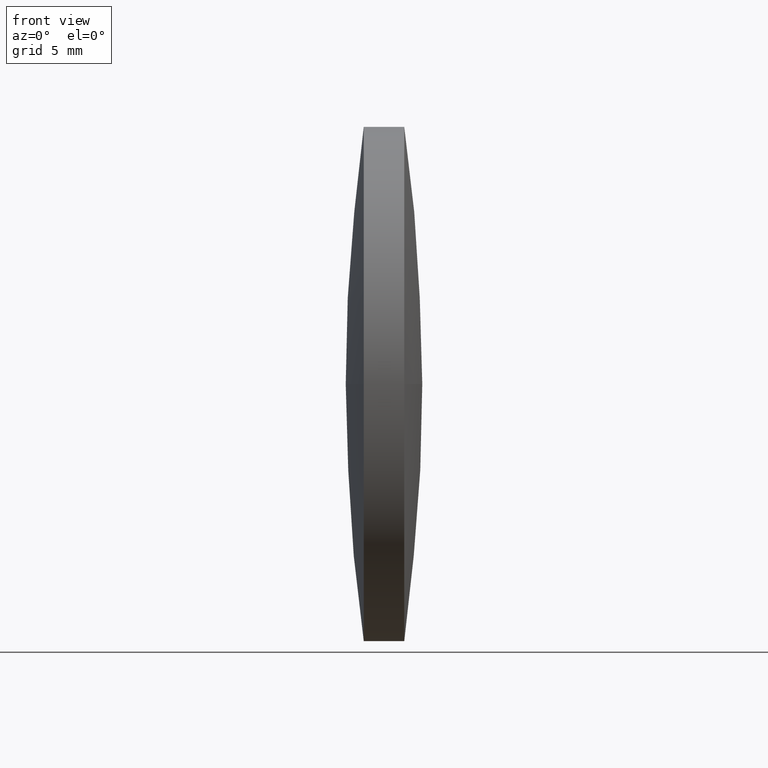
[diagram: clean part render]
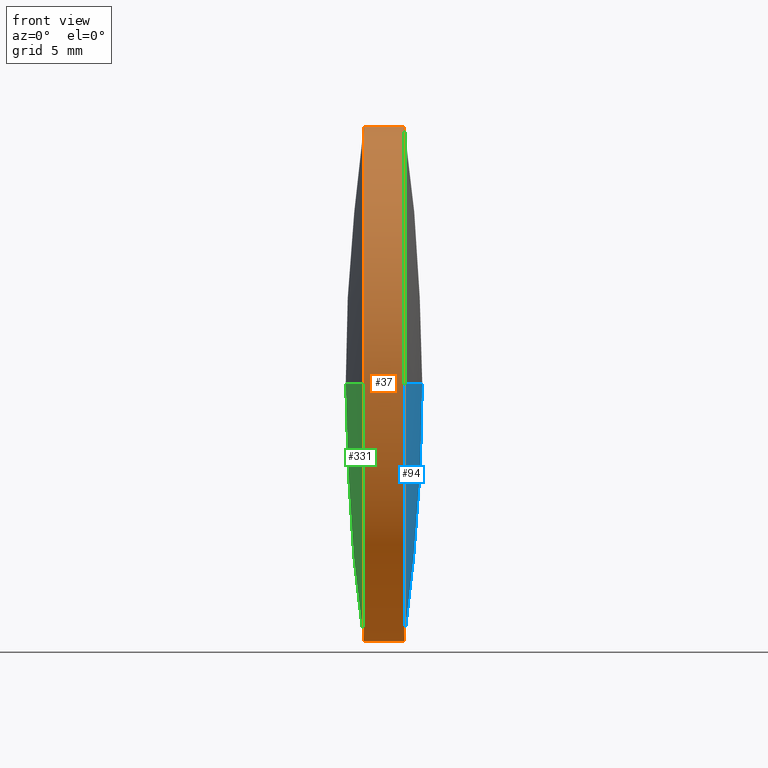
[diagram: same view with three faces highlighted in distinct colors, each labeled with its STEP entity id]
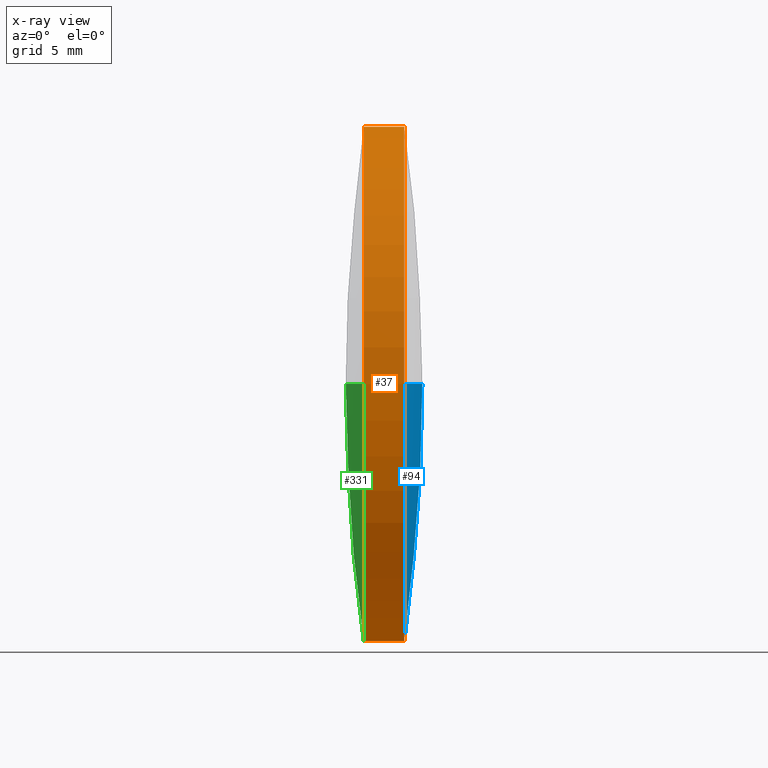
[diagram: x-ray of the same camera — body ghosted, the three highlighted faces saturated]
A machine part, front view with three faces highlighted in distinct colors.
The next image is the same camera in x-ray (body ghosted, the three faces saturated) — at least one of them is partly hidden behind the body in this view.
Their STEP definitions:

[orange] entity #37 — the highlighted cylindrical surface (partial cylindrical patch) has radius 12.7 mm, axis along (-1, -0, -0).
#2 = CARTESIAN_POINT ( 'NONE',  ( 85.45852234609111500, 48.61611302318478100, 0.0000000000000000000 ) ) ;
#15 = DIRECTION ( 'NONE',  ( -1.000000000000000000, -0.0000000000000000000, -0.0000000000000000000 ) ) ;
#20 = EDGE_CURVE ( 'NONE', #22, #130, #261, .T. ) ;
#22 = VERTEX_POINT ( 'NONE', #307 ) ;
#35 = DIRECTION ( 'NONE',  ( 0.0000000000000000000, 0.0000000000000000000, 1.000000000000000000 ) ) ;
#37 = ADVANCED_FACE ( 'NONE', ( #274 ), #120, .T. ) ;
#46 = ORIENTED_EDGE ( 'NONE', *, *, #228, .T. ) ;
#47 = VECTOR ( 'NONE', #241, 1000.000000000000000 ) ;
#59 = VERTEX_POINT ( 'NONE', #309 ) ;
#62 = CARTESIAN_POINT ( 'NONE',  ( 85.45852234609111500, 48.61611302318478100, 0.0000000000000000000 ) ) ;
#73 = EDGE_LOOP ( 'NONE', ( #264, #46, #92, #243, #141, #229 ) ) ;
#77 = CARTESIAN_POINT ( 'NONE',  ( 87.45786520323396500, 48.61611302318478100, 0.0000000000000000000 ) ) ;
#81 = CIRCLE ( 'NONE', #325, 12.69999999999999600 ) ;
#83 = EDGE_CURVE ( 'NONE', #343, #22, #193, .T. ) ;
#92 = ORIENTED_EDGE ( 'NONE', *, *, #272, .T. ) ;
#106 = AXIS2_PLACEMENT_3D ( 'NONE', #242, #296, #245 ) ;
#108 = DIRECTION ( 'NONE',  ( 0.0000000000000000000, 0.0000000000000000000, 1.000000000000000000 ) ) ;
#116 = CARTESIAN_POINT ( 'NONE',  ( 85.45852234609111500, 48.61611302318478100, 12.69999999999999600 ) ) ;
#120 = CYLINDRICAL_SURFACE ( 'NONE', #253, 12.69999999999999600 ) ;
#127 = AXIS2_PLACEMENT_3D ( 'NONE', #62, #199, #35 ) ;
#129 = VECTOR ( 'NONE', #335, 1000.000000000000000 ) ;
#130 = VERTEX_POINT ( 'NONE', #254 ) ;
#140 = CIRCLE ( 'NONE', #106, 12.69999999999999600 ) ;
#141 = ORIENTED_EDGE ( 'NONE', *, *, #236, .F. ) ;
#162 = EDGE_CURVE ( 'NONE', #219, #251, #263, .T. ) ;
#191 = DIRECTION ( 'NONE',  ( 0.0000000000000000000, 0.0000000000000000000, 1.000000000000000000 ) ) ;
#193 = LINE ( 'NONE', #306, #129 ) ;
#199 = DIRECTION ( 'NONE',  ( -1.000000000000000000, -0.0000000000000000000, -0.0000000000000000000 ) ) ;
#207 = CIRCLE ( 'NONE', #234, 12.69999999999999600 ) ;
#215 = CARTESIAN_POINT ( 'NONE',  ( 79.30540135083715800, 48.61611302318478100, 12.69999999999999600 ) ) ;
#219 = VERTEX_POINT ( 'NONE', #294 ) ;
#228 = EDGE_CURVE ( 'NONE', #343, #59, #207, .T. ) ;
#229 = ORIENTED_EDGE ( 'NONE', *, *, #20, .F. ) ;
#234 = AXIS2_PLACEMENT_3D ( 'NONE', #77, #266, #108 ) ;
#236 = EDGE_CURVE ( 'NONE', #130, #251, #81, .T. ) ;
#241 = DIRECTION ( 'NONE',  ( -1.000000000000000000, -0.0000000000000000000, -0.0000000000000000000 ) ) ;
#242 = CARTESIAN_POINT ( 'NONE',  ( 87.45786520323396500, 48.61611302318478100, 0.0000000000000000000 ) ) ;
#243 = ORIENTED_EDGE ( 'NONE', *, *, #162, .T. ) ;
#245 = DIRECTION ( 'NONE',  ( 0.0000000000000000000, 0.0000000000000000000, 1.000000000000000000 ) ) ;
#247 = DIRECTION ( 'NONE',  ( -1.000000000000000000, -0.0000000000000000000, -0.0000000000000000000 ) ) ;
#251 = VERTEX_POINT ( 'NONE', #116 ) ;
#253 = AXIS2_PLACEMENT_3D ( 'NONE', #278, #15, #281 ) ;
#254 = CARTESIAN_POINT ( 'NONE',  ( 85.45852234609111500, 35.91611302318479900, -1.555301434917130000E-015 ) ) ;
#261 = CIRCLE ( 'NONE', #127, 12.69999999999999600 ) ;
#263 = LINE ( 'NONE', #215, #47 ) ;
#264 = ORIENTED_EDGE ( 'NONE', *, *, #83, .F. ) ;
#266 = DIRECTION ( 'NONE',  ( -1.000000000000000000, -0.0000000000000000000, -0.0000000000000000000 ) ) ;
#271 = CARTESIAN_POINT ( 'NONE',  ( 87.45786520323396500, 48.61611302318478100, -12.69999999999999600 ) ) ;
#272 = EDGE_CURVE ( 'NONE', #59, #219, #140, .T. ) ;
#274 = FACE_OUTER_BOUND ( 'NONE', #73, .T. ) ;
#278 = CARTESIAN_POINT ( 'NONE',  ( 79.30540135083715800, 48.61611302318478100, 0.0000000000000000000 ) ) ;
#281 = DIRECTION ( 'NONE',  ( 0.0000000000000000000, 0.0000000000000000000, 1.000000000000000000 ) ) ;
#294 = CARTESIAN_POINT ( 'NONE',  ( 87.45786520323396500, 48.61611302318478100, 12.69999999999999600 ) ) ;
#296 = DIRECTION ( 'NONE',  ( -1.000000000000000000, -0.0000000000000000000, -0.0000000000000000000 ) ) ;
#306 = CARTESIAN_POINT ( 'NONE',  ( 79.30540135083715800, 48.61611302318478100, -12.69999999999999600 ) ) ;
#307 = CARTESIAN_POINT ( 'NONE',  ( 85.45852234609111500, 48.61611302318478100, -12.69999999999999600 ) ) ;
#309 = CARTESIAN_POINT ( 'NONE',  ( 87.45786520323396500, 35.91611302318485600, 0.0000000000000000000 ) ) ;
#325 = AXIS2_PLACEMENT_3D ( 'NONE', #2, #247, #191 ) ;
#335 = DIRECTION ( 'NONE',  ( -1.000000000000000000, -0.0000000000000000000, -0.0000000000000000000 ) ) ;
#343 = VERTEX_POINT ( 'NONE', #271 ) ;

[blue] entity #94 — the highlighted spherical surface has radius 91.0484 mm.
#9 = EDGE_CURVE ( 'NONE', #43, #343, #202, .T. ) ;
#11 = DIRECTION ( 'NONE',  ( 0.0000000000000000000, 0.0000000000000000000, -1.000000000000000000 ) ) ;
#38 = DIRECTION ( 'NONE',  ( 0.0000000000000000000, 0.0000000000000000000, 1.000000000000000000 ) ) ;
#41 = CARTESIAN_POINT ( 'NONE',  ( 87.45786520323396500, 61.31611302318484000, 1.555301434917129800E-015 ) ) ;
#43 = VERTEX_POINT ( 'NONE', #41 ) ;
#59 = VERTEX_POINT ( 'NONE', #309 ) ;
#65 = CARTESIAN_POINT ( 'NONE',  ( -2.700433356547117000, 48.61611302318491600, 0.0000000000000000000 ) ) ;
#77 = CARTESIAN_POINT ( 'NONE',  ( 87.45786520323396500, 48.61611302318478100, 0.0000000000000000000 ) ) ;
#80 = DIRECTION ( 'NONE',  ( 0.0000000000000000000, -1.000000000000000000, -1.224646799147353200E-016 ) ) ;
#88 = AXIS2_PLACEMENT_3D ( 'NONE', #334, #11, #198 ) ;
#94 = ADVANCED_FACE ( 'NONE', ( #326 ), #131, .T. ) ;
#108 = DIRECTION ( 'NONE',  ( 0.0000000000000000000, 0.0000000000000000000, 1.000000000000000000 ) ) ;
#114 = ORIENTED_EDGE ( 'NONE', *, *, #250, .T. ) ;
#131 = SPHERICAL_SURFACE ( 'NONE', #305, 91.04838713120965100 ) ;
#142 = ORIENTED_EDGE ( 'NONE', *, *, #324, .F. ) ;
#164 = ORIENTED_EDGE ( 'NONE', *, *, #228, .F. ) ;
#170 = AXIS2_PLACEMENT_3D ( 'NONE', #177, #225, #38 ) ;
#177 = CARTESIAN_POINT ( 'NONE',  ( 87.45786520323396500, 48.61611302318478100, 0.0000000000000000000 ) ) ;
#198 = DIRECTION ( 'NONE',  ( -1.000000000000000000, 0.0000000000000000000, 0.0000000000000000000 ) ) ;
#202 = CIRCLE ( 'NONE', #170, 12.69999999999999600 ) ;
#207 = CIRCLE ( 'NONE', #234, 12.69999999999999600 ) ;
#216 = CARTESIAN_POINT ( 'NONE',  ( 88.34795377466252800, 48.61611302318490900, 0.0000000000000000000 ) ) ;
#225 = DIRECTION ( 'NONE',  ( -1.000000000000000000, -0.0000000000000000000, -0.0000000000000000000 ) ) ;
#228 = EDGE_CURVE ( 'NONE', #343, #59, #207, .T. ) ;
#234 = AXIS2_PLACEMENT_3D ( 'NONE', #77, #266, #108 ) ;
#250 = EDGE_CURVE ( 'NONE', #330, #59, #279, .T. ) ;
#252 = DIRECTION ( 'NONE',  ( 0.0000000000000000000, -1.224646799147353200E-016, 1.000000000000000000 ) ) ;
#256 = DIRECTION ( 'NONE',  ( 0.0000000000000000000, 0.0000000000000000000, 1.000000000000000000 ) ) ;
#257 = DIRECTION ( 'NONE',  ( 0.0000000000000000000, -1.000000000000000000, 0.0000000000000000000 ) ) ;
#266 = DIRECTION ( 'NONE',  ( -1.000000000000000000, -0.0000000000000000000, -0.0000000000000000000 ) ) ;
#271 = CARTESIAN_POINT ( 'NONE',  ( 87.45786520323396500, 48.61611302318478100, -12.69999999999999600 ) ) ;
#277 = CARTESIAN_POINT ( 'NONE',  ( -2.700433356547117000, 48.61611302318491600, 0.0000000000000000000 ) ) ;
#279 = CIRCLE ( 'NONE', #88, 91.04838713120965100 ) ;
#280 = EDGE_LOOP ( 'NONE', ( #142, #114, #164, #318 ) ) ;
#298 = CIRCLE ( 'NONE', #344, 91.04838713120965100 ) ;
#305 = AXIS2_PLACEMENT_3D ( 'NONE', #65, #256, #257 ) ;
#309 = CARTESIAN_POINT ( 'NONE',  ( 87.45786520323396500, 35.91611302318485600, 0.0000000000000000000 ) ) ;
#318 = ORIENTED_EDGE ( 'NONE', *, *, #9, .F. ) ;
#324 = EDGE_CURVE ( 'NONE', #330, #43, #298, .T. ) ;
#326 = FACE_OUTER_BOUND ( 'NONE', #280, .T. ) ;
#330 = VERTEX_POINT ( 'NONE', #216 ) ;
#334 = CARTESIAN_POINT ( 'NONE',  ( -2.700433356547117000, 48.61611302318491600, 0.0000000000000000000 ) ) ;
#343 = VERTEX_POINT ( 'NONE', #271 ) ;
#344 = AXIS2_PLACEMENT_3D ( 'NONE', #277, #252, #80 ) ;

[green] entity #331 — the highlighted spherical surface has radius 91.0484 mm.
#4 = ORIENTED_EDGE ( 'NONE', *, *, #28, .F. ) ;
#20 = EDGE_CURVE ( 'NONE', #22, #130, #261, .T. ) ;
#22 = VERTEX_POINT ( 'NONE', #307 ) ;
#27 = AXIS2_PLACEMENT_3D ( 'NONE', #79, #270, #138 ) ;
#28 = EDGE_CURVE ( 'NONE', #192, #169, #66, .T. ) ;
#35 = DIRECTION ( 'NONE',  ( 0.0000000000000000000, 0.0000000000000000000, 1.000000000000000000 ) ) ;
#39 = CARTESIAN_POINT ( 'NONE',  ( 175.6168209058729100, 48.61611302318473100, 0.0000000000000000000 ) ) ;
#62 = CARTESIAN_POINT ( 'NONE',  ( 85.45852234609111500, 48.61611302318478100, 0.0000000000000000000 ) ) ;
#66 = CIRCLE ( 'NONE', #149, 91.04838713121036200 ) ;
#79 = CARTESIAN_POINT ( 'NONE',  ( 85.45852234609111500, 48.61611302318478100, 0.0000000000000000000 ) ) ;
#90 = ORIENTED_EDGE ( 'NONE', *, *, #20, .T. ) ;
#110 = DIRECTION ( 'NONE',  ( 0.0000000000000000000, 1.000000000000000000, 0.0000000000000000000 ) ) ;
#126 = CIRCLE ( 'NONE', #27, 12.69999999999999600 ) ;
#127 = AXIS2_PLACEMENT_3D ( 'NONE', #62, #199, #35 ) ;
#130 = VERTEX_POINT ( 'NONE', #254 ) ;
#134 = DIRECTION ( 'NONE',  ( 0.0000000000000000000, 1.000000000000000000, 1.224646799147353200E-016 ) ) ;
#136 = CARTESIAN_POINT ( 'NONE',  ( 175.6168209058729100, 48.61611302318473100, 0.0000000000000000000 ) ) ;
#138 = DIRECTION ( 'NONE',  ( 0.0000000000000000000, 0.0000000000000000000, 1.000000000000000000 ) ) ;
#149 = AXIS2_PLACEMENT_3D ( 'NONE', #39, #231, #310 ) ;
#152 = ORIENTED_EDGE ( 'NONE', *, *, #316, .T. ) ;
#160 = CIRCLE ( 'NONE', #312, 91.04838713121036200 ) ;
#161 = EDGE_LOOP ( 'NONE', ( #152, #90, #323, #4 ) ) ;
#167 = AXIS2_PLACEMENT_3D ( 'NONE', #304, #255, #110 ) ;
#169 = VERTEX_POINT ( 'NONE', #244 ) ;
#186 = EDGE_CURVE ( 'NONE', #130, #169, #160, .T. ) ;
#192 = VERTEX_POINT ( 'NONE', #246 ) ;
#199 = DIRECTION ( 'NONE',  ( -1.000000000000000000, -0.0000000000000000000, -0.0000000000000000000 ) ) ;
#211 = DIRECTION ( 'NONE',  ( 0.0000000000000000000, 1.224646799147353200E-016, -1.000000000000000000 ) ) ;
#218 = SPHERICAL_SURFACE ( 'NONE', #167, 91.04838713121036200 ) ;
#223 = FACE_OUTER_BOUND ( 'NONE', #161, .T. ) ;
#231 = DIRECTION ( 'NONE',  ( -0.0000000000000000000, 0.0000000000000000000, 1.000000000000000000 ) ) ;
#244 = CARTESIAN_POINT ( 'NONE',  ( 84.56843377466255200, 48.61611302318473100, 0.0000000000000000000 ) ) ;
#246 = CARTESIAN_POINT ( 'NONE',  ( 85.45852234609111500, 61.31611302318471200, 0.0000000000000000000 ) ) ;
#254 = CARTESIAN_POINT ( 'NONE',  ( 85.45852234609111500, 35.91611302318479900, -1.555301434917130000E-015 ) ) ;
#255 = DIRECTION ( 'NONE',  ( -0.0000000000000000000, 0.0000000000000000000, -1.000000000000000000 ) ) ;
#261 = CIRCLE ( 'NONE', #127, 12.69999999999999600 ) ;
#270 = DIRECTION ( 'NONE',  ( -1.000000000000000000, -0.0000000000000000000, -0.0000000000000000000 ) ) ;
#304 = CARTESIAN_POINT ( 'NONE',  ( 175.6168209058729100, 48.61611302318473100, 0.0000000000000000000 ) ) ;
#307 = CARTESIAN_POINT ( 'NONE',  ( 85.45852234609111500, 48.61611302318478100, -12.69999999999999600 ) ) ;
#310 = DIRECTION ( 'NONE',  ( 1.000000000000000000, 0.0000000000000000000, 0.0000000000000000000 ) ) ;
#312 = AXIS2_PLACEMENT_3D ( 'NONE', #136, #211, #134 ) ;
#316 = EDGE_CURVE ( 'NONE', #192, #22, #126, .T. ) ;
#323 = ORIENTED_EDGE ( 'NONE', *, *, #186, .T. ) ;
#331 = ADVANCED_FACE ( 'NONE', ( #223 ), #218, .T. ) ;